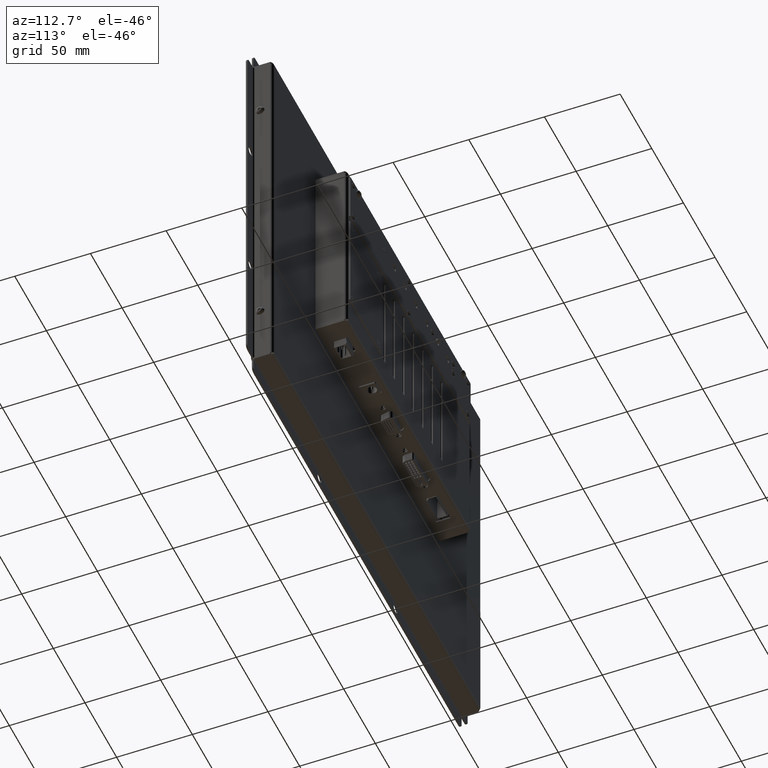
[diagram: clean part render]
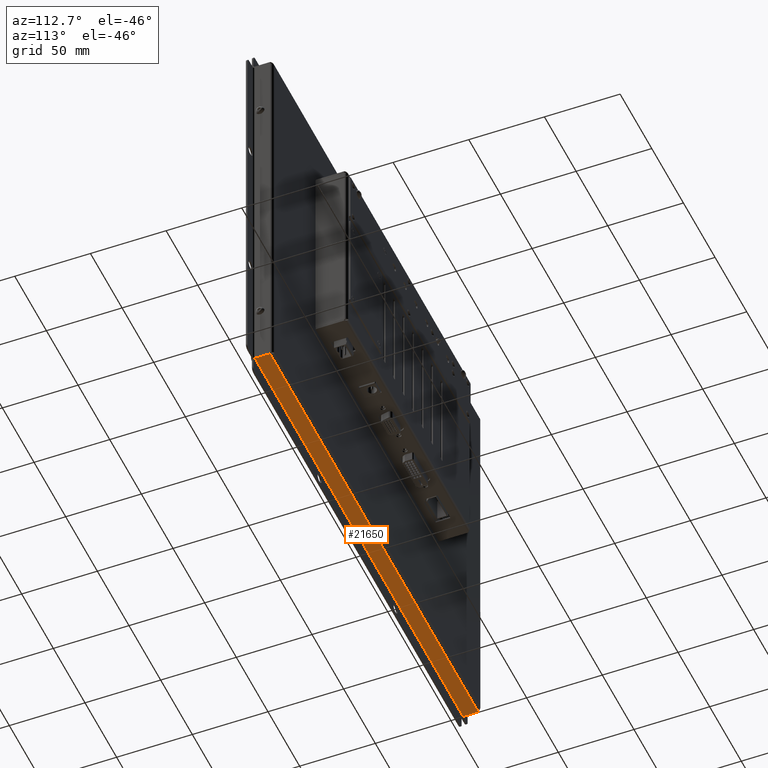
[diagram: same view with one face highlighted and labeled with its STEP entity id]
A machine part, auxiliary view. The second image highlights one B-rep face of the part: STEP entity #21650.
In plain terms, the highlighted planar face has unit normal (-0, -0, 1).
Its self-contained STEP definition (entity closure, byte-faithful):
#1760=PLANE('',#23378);
#2460=FACE_OUTER_BOUND('',#3683,.T.);
#3683=EDGE_LOOP('',(#15449,#15450,#15451,#15452));
#5283=LINE('',#31843,#7135);
#5291=LINE('',#31868,#7143);
#5292=LINE('',#31870,#7144);
#5293=LINE('',#31871,#7145);
#7135=VECTOR('',#25865,10.);
#7143=VECTOR('',#25895,10.);
#7144=VECTOR('',#25896,10.);
#7145=VECTOR('',#25897,10.);
#9946=VERTEX_POINT('',#31832);
#9947=VERTEX_POINT('',#31836);
#9953=VERTEX_POINT('',#31867);
#9954=VERTEX_POINT('',#31869);
#12151=EDGE_CURVE('',#9946,#9947,#5283,.T.);
#12163=EDGE_CURVE('',#9953,#9947,#5291,.T.);
#12164=EDGE_CURVE('',#9953,#9954,#5292,.T.);
#12165=EDGE_CURVE('',#9946,#9954,#5293,.T.);
#15449=ORIENTED_EDGE('',*,*,#12151,.T.);
#15450=ORIENTED_EDGE('',*,*,#12163,.F.);
#15451=ORIENTED_EDGE('',*,*,#12164,.T.);
#15452=ORIENTED_EDGE('',*,*,#12165,.F.);
#21650=ADVANCED_FACE('',(#2460),#1760,.F.);
#23378=AXIS2_PLACEMENT_3D('',#31866,#25893,#25894);
#25865=DIRECTION('',(-1.,-2.16925834465588E-16,-6.36422957228321E-33));
#25893=DIRECTION('center_axis',(-2.16925834465588E-16,1.,5.94739516468208E-15));
#25894=DIRECTION('ref_axis',(1.,2.16925834465587E-16,2.15970436401246E-16));
#25895=DIRECTION('',(1.15863945454336E-30,-5.39030285815812E-15,1.));
#25896=DIRECTION('',(1.,2.16925834465588E-16,5.14988491690025E-33));
#25897=DIRECTION('',(7.87481847935251E-14,5.32894956569163E-15,-1.));
#31832=CARTESIAN_POINT('',(164.499999999999,-128.,12.));
#31836=CARTESIAN_POINT('',(-164.5,-128.,12.));
#31843=CARTESIAN_POINT('',(-82.25,-128.,12.));
#31866=CARTESIAN_POINT('Origin',(3.71945557948623E-14,-128.,6.8690266447077));
#31867=CARTESIAN_POINT('',(-164.5,-128.,1.99999999999999));
#31868=CARTESIAN_POINT('',(-164.5,-128.,1.99999999999999));
#31869=CARTESIAN_POINT('',(164.5,-128.,1.99999999999999));
#31870=CARTESIAN_POINT('',(3.65770842392929E-14,-128.,1.99999999999999));
#31871=CARTESIAN_POINT('',(164.5,-128.,-0.26194671058466));